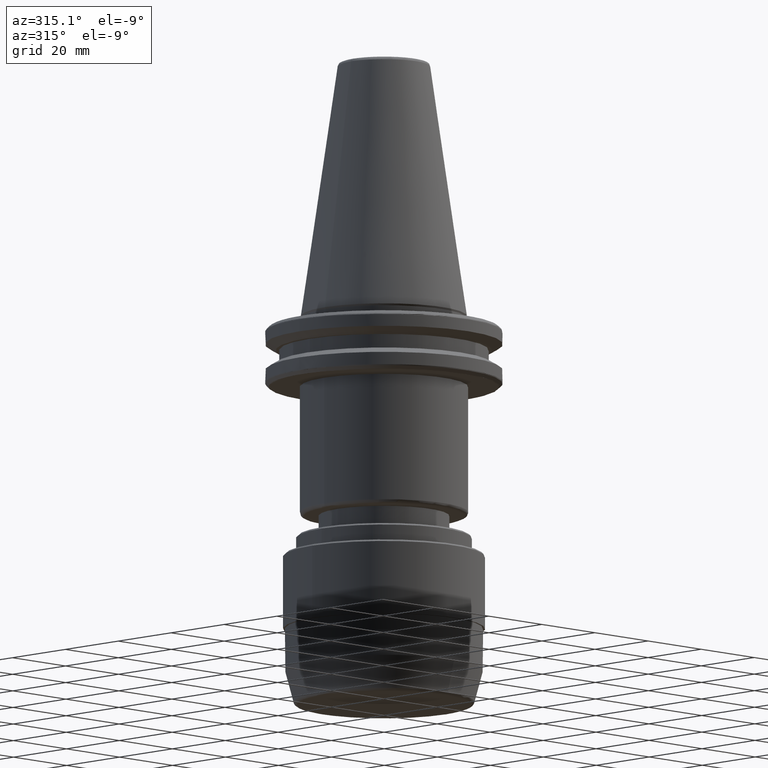
[diagram: clean part render]
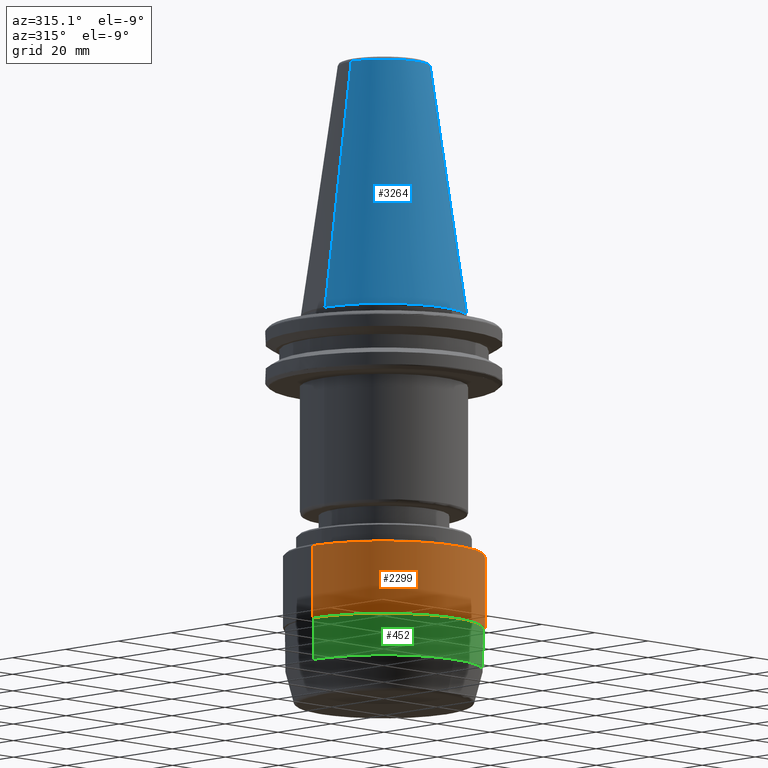
[diagram: same view with three faces highlighted in distinct colors, each labeled with its STEP entity id]
A machine part, auxiliary view with three faces highlighted in distinct colors.
Their STEP definitions:

[orange] entity #2299 — the highlighted cylindrical surface (partial cylindrical patch) has radius 27 mm, axis along (0, 0, 1).
#11 = FACE_OUTER_BOUND ( 'NONE', #1722, .T. ) ;
#104 = EDGE_CURVE ( 'NONE', #2787, #2633, #1149, .T. ) ;
#246 = DIRECTION ( 'NONE',  ( 1.000000000000000000, 0.0000000000000000000, 0.0000000000000000000 ) ) ;
#459 = LINE ( 'NONE', #2673, #1166 ) ;
#503 = EDGE_CURVE ( 'NONE', #1426, #844, #2469, .T. ) ;
#569 = CARTESIAN_POINT ( 'NONE',  ( -27.00000000000000000, 3.306546357697853700E-015, -84.49999999999998600 ) ) ;
#590 = DIRECTION ( 'NONE',  ( -0.0000000000000000000, -0.0000000000000000000, 1.000000000000000000 ) ) ;
#685 = ORIENTED_EDGE ( 'NONE', *, *, #104, .T. ) ;
#735 = ORIENTED_EDGE ( 'NONE', *, *, #1239, .T. ) ;
#790 = CARTESIAN_POINT ( 'NONE',  ( 0.0000000000000000000, 0.0000000000000000000, 0.0000000000000000000 ) ) ;
#844 = VERTEX_POINT ( 'NONE', #2683 ) ;
#874 = EDGE_CURVE ( 'NONE', #2787, #1426, #459, .T. ) ;
#1052 = DIRECTION ( 'NONE',  ( 0.0000000000000000000, 0.0000000000000000000, 1.000000000000000000 ) ) ;
#1069 = AXIS2_PLACEMENT_3D ( 'NONE', #790, #2598, #246 ) ;
#1149 = CIRCLE ( 'NONE', #1383, 27.00000000000000000 ) ;
#1166 = VECTOR ( 'NONE', #2225, 1000.000000000000000 ) ;
#1169 = CARTESIAN_POINT ( 'NONE',  ( 0.0000000000000000000, 0.0000000000000000000, -65.00000000000000000 ) ) ;
#1239 = EDGE_CURVE ( 'NONE', #2633, #844, #1710, .T. ) ;
#1326 = CYLINDRICAL_SURFACE ( 'NONE', #1069, 27.00000000000000000 ) ;
#1383 = AXIS2_PLACEMENT_3D ( 'NONE', #3032, #1416, #1744 ) ;
#1416 = DIRECTION ( 'NONE',  ( 0.0000000000000000000, 0.0000000000000000000, 1.000000000000000000 ) ) ;
#1426 = VERTEX_POINT ( 'NONE', #2816 ) ;
#1556 = CARTESIAN_POINT ( 'NONE',  ( 27.00000000000000000, 0.0000000000000000000, -84.49999999999998600 ) ) ;
#1710 = LINE ( 'NONE', #2578, #2286 ) ;
#1722 = EDGE_LOOP ( 'NONE', ( #3315, #685, #735, #2782 ) ) ;
#1744 = DIRECTION ( 'NONE',  ( 1.000000000000000000, 0.0000000000000000000, 0.0000000000000000000 ) ) ;
#2225 = DIRECTION ( 'NONE',  ( 0.0000000000000000000, 0.0000000000000000000, 1.000000000000000000 ) ) ;
#2286 = VECTOR ( 'NONE', #1052, 1000.000000000000000 ) ;
#2299 = ADVANCED_FACE ( 'NONE', ( #11 ), #1326, .T. ) ;
#2394 = DIRECTION ( 'NONE',  ( -1.000000000000000000, 0.0000000000000000000, 0.0000000000000000000 ) ) ;
#2469 = CIRCLE ( 'NONE', #3183, 27.00000000000000000 ) ;
#2578 = CARTESIAN_POINT ( 'NONE',  ( 27.00000000000000000, 0.0000000000000000000, 0.0000000000000000000 ) ) ;
#2598 = DIRECTION ( 'NONE',  ( 0.0000000000000000000, 0.0000000000000000000, 1.000000000000000000 ) ) ;
#2633 = VERTEX_POINT ( 'NONE', #1556 ) ;
#2673 = CARTESIAN_POINT ( 'NONE',  ( -27.00000000000000000, 3.306546357697853700E-015, 0.0000000000000000000 ) ) ;
#2683 = CARTESIAN_POINT ( 'NONE',  ( 27.00000000000000000, 0.0000000000000000000, -65.00000000000000000 ) ) ;
#2782 = ORIENTED_EDGE ( 'NONE', *, *, #503, .F. ) ;
#2787 = VERTEX_POINT ( 'NONE', #569 ) ;
#2816 = CARTESIAN_POINT ( 'NONE',  ( -27.00000000000000000, 3.306546357697853700E-015, -65.00000000000000000 ) ) ;
#3032 = CARTESIAN_POINT ( 'NONE',  ( 0.0000000000000000000, 0.0000000000000000000, -84.49999999999998600 ) ) ;
#3183 = AXIS2_PLACEMENT_3D ( 'NONE', #1169, #590, #2394 ) ;
#3315 = ORIENTED_EDGE ( 'NONE', *, *, #874, .F. ) ;

[blue] entity #3264 — the highlighted conical surface has half-angle 8.297 deg.
#173 = LINE ( 'NONE', #2207, #2239 ) ;
#273 = CARTESIAN_POINT ( 'NONE',  ( 0.0000000000000000000, 0.0000000000000000000, 0.0000000000000000000 ) ) ;
#288 = CARTESIAN_POINT ( 'NONE',  ( 12.37469537611110800, 2.118620309691396900E-015, 67.54430822726729400 ) ) ;
#414 = AXIS2_PLACEMENT_3D ( 'NONE', #617, #2419, #889 ) ;
#421 = CIRCLE ( 'NONE', #414, 22.22500000000000100 ) ;
#456 = FACE_OUTER_BOUND ( 'NONE', #1471, .T. ) ;
#536 = DIRECTION ( 'NONE',  ( 0.0000000000000000000, 0.0000000000000000000, -1.000000000000000000 ) ) ;
#545 = ORIENTED_EDGE ( 'NONE', *, *, #3029, .T. ) ;
#617 = CARTESIAN_POINT ( 'NONE',  ( 0.0000000000000000000, 0.0000000000000000000, 0.0000000000000000000 ) ) ;
#889 = DIRECTION ( 'NONE',  ( -1.000000000000000000, 0.0000000000000000000, 6.244223985518314900E-016 ) ) ;
#906 = ORIENTED_EDGE ( 'NONE', *, *, #2874, .T. ) ;
#913 = VERTEX_POINT ( 'NONE', #2111 ) ;
#917 = VECTOR ( 'NONE', #2542, 1000.000000000000000 ) ;
#921 = CARTESIAN_POINT ( 'NONE',  ( 0.0000000000000000000, 0.0000000000000000000, 67.54430822726729400 ) ) ;
#1011 = ORIENTED_EDGE ( 'NONE', *, *, #3021, .T. ) ;
#1143 = ORIENTED_EDGE ( 'NONE', *, *, #2529, .F. ) ;
#1184 = DIRECTION ( 'NONE',  ( -1.000000000000000000, 0.0000000000000000000, 0.0000000000000000000 ) ) ;
#1471 = EDGE_LOOP ( 'NONE', ( #1143, #1011, #545, #906 ) ) ;
#1573 = CARTESIAN_POINT ( 'NONE',  ( -12.37469537611110800, 0.0000000000000000000, 67.54430822726729400 ) ) ;
#1614 = CARTESIAN_POINT ( 'NONE',  ( 22.22500000000000500, 0.0000000000000000000, 0.0000000000000000000 ) ) ;
#1644 = AXIS2_PLACEMENT_3D ( 'NONE', #921, #2717, #1184 ) ;
#1932 = AXIS2_PLACEMENT_3D ( 'NONE', #273, #536, #2094 ) ;
#2039 = CARTESIAN_POINT ( 'NONE',  ( 22.22500000000000100, 2.721777511104992800E-015, 0.0000000000000000000 ) ) ;
#2072 = VERTEX_POINT ( 'NONE', #1573 ) ;
#2094 = DIRECTION ( 'NONE',  ( -1.000000000000000000, 0.0000000000000000000, 0.0000000000000000000 ) ) ;
#2111 = CARTESIAN_POINT ( 'NONE',  ( -22.22500000000000500, 2.721777511104993200E-015, 0.0000000000000000000 ) ) ;
#2207 = CARTESIAN_POINT ( 'NONE',  ( -22.22500000000000100, 0.0000000000000000000, 0.0000000000000000000 ) ) ;
#2239 = VECTOR ( 'NONE', #2454, 1000.000000000000000 ) ;
#2270 = LINE ( 'NONE', #2039, #917 ) ;
#2419 = DIRECTION ( 'NONE',  ( -0.0000000000000000000, -0.0000000000000000000, 1.000000000000000000 ) ) ;
#2454 = DIRECTION ( 'NONE',  ( -0.1443082272673070500, 0.0000000000000000000, -0.9895327864921743500 ) ) ;
#2529 = EDGE_CURVE ( 'NONE', #2741, #2809, #2270, .T. ) ;
#2542 = DIRECTION ( 'NONE',  ( 0.1443082272673070500, 1.767266086135363700E-017, -0.9895327864921743500 ) ) ;
#2717 = DIRECTION ( 'NONE',  ( 0.0000000000000000000, 0.0000000000000000000, -1.000000000000000000 ) ) ;
#2741 = VERTEX_POINT ( 'NONE', #288 ) ;
#2809 = VERTEX_POINT ( 'NONE', #1614 ) ;
#2832 = CIRCLE ( 'NONE', #1644, 12.37469537611110800 ) ;
#2874 = EDGE_CURVE ( 'NONE', #913, #2809, #421, .T. ) ;
#3015 = CONICAL_SURFACE ( 'NONE', #1932, 22.22500000000000100, 0.1448138465474190500 ) ;
#3021 = EDGE_CURVE ( 'NONE', #2741, #2072, #2832, .T. ) ;
#3029 = EDGE_CURVE ( 'NONE', #2072, #913, #173, .T. ) ;
#3264 = ADVANCED_FACE ( 'NONE', ( #456 ), #3015, .T. ) ;

[green] entity #452 — the highlighted cylindrical surface (partial cylindrical patch) has radius 26.5 mm, axis along (0, 0, 1).
#129 = ORIENTED_EDGE ( 'NONE', *, *, #1038, .T. ) ;
#222 = CARTESIAN_POINT ( 'NONE',  ( 0.0000000000000000000, 0.0000000000000000000, -95.66987298107756000 ) ) ;
#258 = VERTEX_POINT ( 'NONE', #3192 ) ;
#341 = DIRECTION ( 'NONE',  ( 1.000000000000000000, 0.0000000000000000000, 0.0000000000000000000 ) ) ;
#407 = EDGE_LOOP ( 'NONE', ( #3075, #2970, #129, #2026, #1351 ) ) ;
#452 = ADVANCED_FACE ( 'NONE', ( #653 ), #3216, .T. ) ;
#471 = VERTEX_POINT ( 'NONE', #684 ) ;
#514 = VERTEX_POINT ( 'NONE', #928 ) ;
#579 = EDGE_CURVE ( 'NONE', #471, #258, #2971, .T. ) ;
#653 = FACE_OUTER_BOUND ( 'NONE', #407, .T. ) ;
#684 = CARTESIAN_POINT ( 'NONE',  ( 26.50000000000000000, 0.0000000000000000000, -95.66987298107756000 ) ) ;
#852 = CARTESIAN_POINT ( 'NONE',  ( 0.0000000000000000000, -26.50000000000000700, -95.66987298107756000 ) ) ;
#868 = DIRECTION ( 'NONE',  ( 1.000000000000000000, 0.0000000000000000000, 0.0000000000000000000 ) ) ;
#928 = CARTESIAN_POINT ( 'NONE',  ( -26.50000000000000000, 3.245314017740485800E-015, -95.66987298107756000 ) ) ;
#945 = VECTOR ( 'NONE', #1212, 1000.000000000000000 ) ;
#1009 = CARTESIAN_POINT ( 'NONE',  ( 0.0000000000000000000, 0.0000000000000000000, -84.49999999999998600 ) ) ;
#1038 = EDGE_CURVE ( 'NONE', #2819, #471, #2762, .T. ) ;
#1125 = DIRECTION ( 'NONE',  ( 0.0000000000000000000, 0.0000000000000000000, 1.000000000000000000 ) ) ;
#1159 = VECTOR ( 'NONE', #2047, 1000.000000000000000 ) ;
#1212 = DIRECTION ( 'NONE',  ( 0.0000000000000000000, 0.0000000000000000000, 1.000000000000000000 ) ) ;
#1237 = LINE ( 'NONE', #2276, #1159 ) ;
#1262 = EDGE_CURVE ( 'NONE', #514, #2819, #2956, .T. ) ;
#1278 = DIRECTION ( 'NONE',  ( 1.000000000000000000, 0.0000000000000000000, 0.0000000000000000000 ) ) ;
#1351 = ORIENTED_EDGE ( 'NONE', *, *, #1949, .T. ) ;
#1484 = CARTESIAN_POINT ( 'NONE',  ( 0.0000000000000000000, 0.0000000000000000000, 0.0000000000000000000 ) ) ;
#1546 = AXIS2_PLACEMENT_3D ( 'NONE', #1009, #2805, #1278 ) ;
#1824 = AXIS2_PLACEMENT_3D ( 'NONE', #222, #3103, #3035 ) ;
#1949 = EDGE_CURVE ( 'NONE', #258, #3044, #2728, .T. ) ;
#2026 = ORIENTED_EDGE ( 'NONE', *, *, #579, .T. ) ;
#2047 = DIRECTION ( 'NONE',  ( 0.0000000000000000000, 0.0000000000000000000, 1.000000000000000000 ) ) ;
#2276 = CARTESIAN_POINT ( 'NONE',  ( -26.50000000000000000, 3.245314017740485800E-015, 0.0000000000000000000 ) ) ;
#2689 = AXIS2_PLACEMENT_3D ( 'NONE', #1484, #1125, #341 ) ;
#2728 = CIRCLE ( 'NONE', #1546, 26.50000000000000000 ) ;
#2729 = CARTESIAN_POINT ( 'NONE',  ( -26.50000000000000000, 3.245314017740485800E-015, -84.49999999999998600 ) ) ;
#2746 = CARTESIAN_POINT ( 'NONE',  ( 26.50000000000000000, 0.0000000000000000000, 0.0000000000000000000 ) ) ;
#2762 = CIRCLE ( 'NONE', #2889, 26.50000000000000000 ) ;
#2805 = DIRECTION ( 'NONE',  ( -0.0000000000000000000, -0.0000000000000000000, -1.000000000000000000 ) ) ;
#2819 = VERTEX_POINT ( 'NONE', #852 ) ;
#2889 = AXIS2_PLACEMENT_3D ( 'NONE', #3159, #3156, #868 ) ;
#2956 = CIRCLE ( 'NONE', #1824, 26.50000000000000000 ) ;
#2970 = ORIENTED_EDGE ( 'NONE', *, *, #1262, .T. ) ;
#2971 = LINE ( 'NONE', #2746, #945 ) ;
#3035 = DIRECTION ( 'NONE',  ( 1.000000000000000000, 0.0000000000000000000, 0.0000000000000000000 ) ) ;
#3044 = VERTEX_POINT ( 'NONE', #2729 ) ;
#3075 = ORIENTED_EDGE ( 'NONE', *, *, #3221, .F. ) ;
#3103 = DIRECTION ( 'NONE',  ( 0.0000000000000000000, 0.0000000000000000000, 1.000000000000000000 ) ) ;
#3156 = DIRECTION ( 'NONE',  ( 0.0000000000000000000, 0.0000000000000000000, 1.000000000000000000 ) ) ;
#3159 = CARTESIAN_POINT ( 'NONE',  ( 0.0000000000000000000, 0.0000000000000000000, -95.66987298107756000 ) ) ;
#3192 = CARTESIAN_POINT ( 'NONE',  ( 26.50000000000000000, 0.0000000000000000000, -84.49999999999998600 ) ) ;
#3216 = CYLINDRICAL_SURFACE ( 'NONE', #2689, 26.50000000000000000 ) ;
#3221 = EDGE_CURVE ( 'NONE', #514, #3044, #1237, .T. ) ;